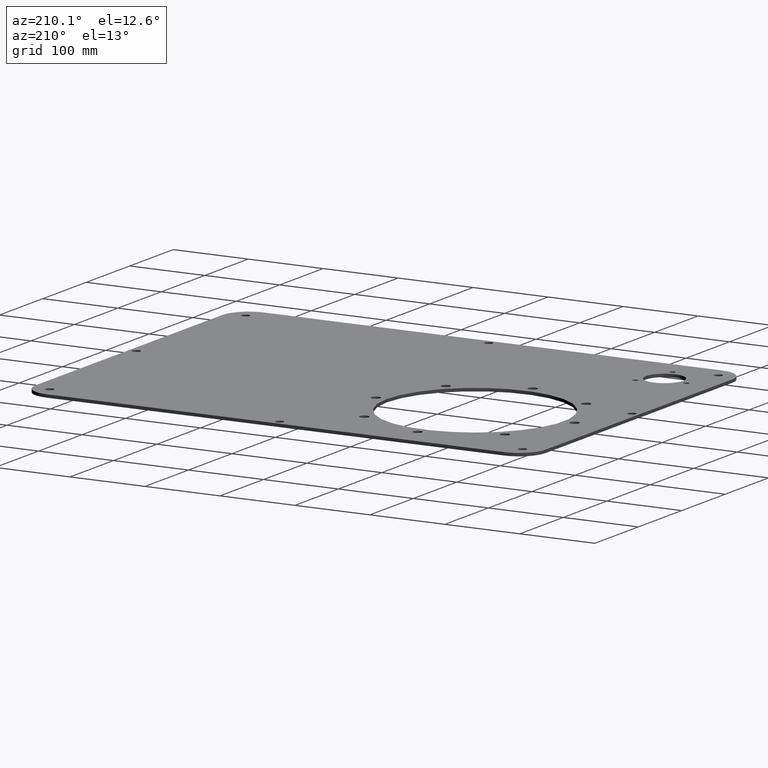
[diagram: clean part render]
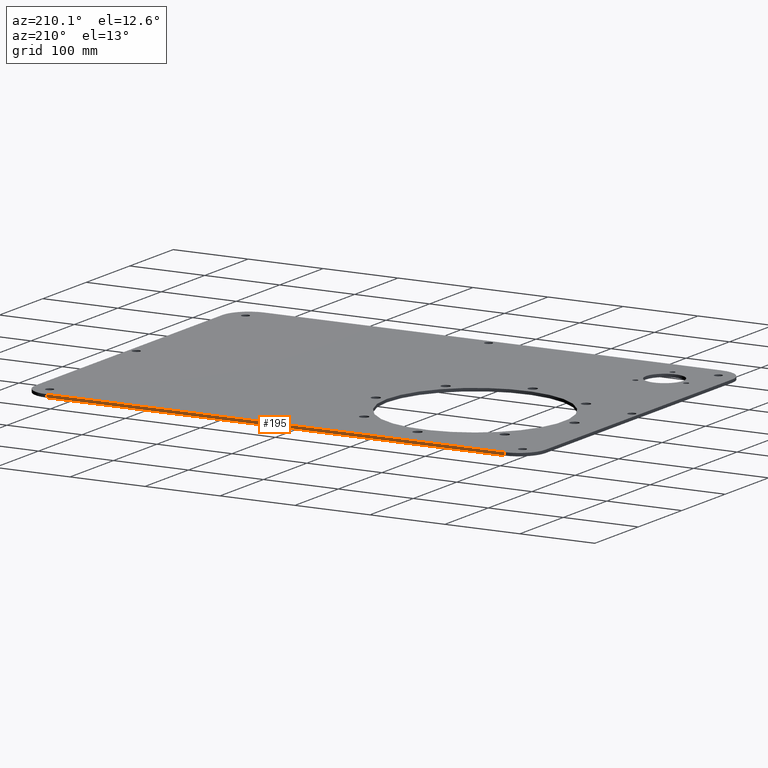
[diagram: same view with one face highlighted and labeled with its STEP entity id]
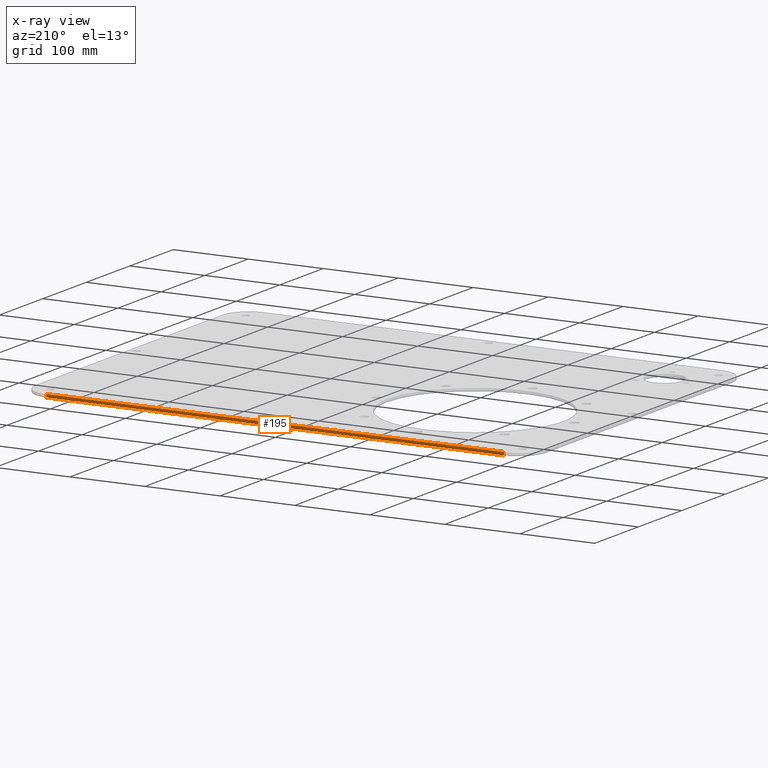
[diagram: x-ray of the same camera — body ghosted, the highlighted face saturated]
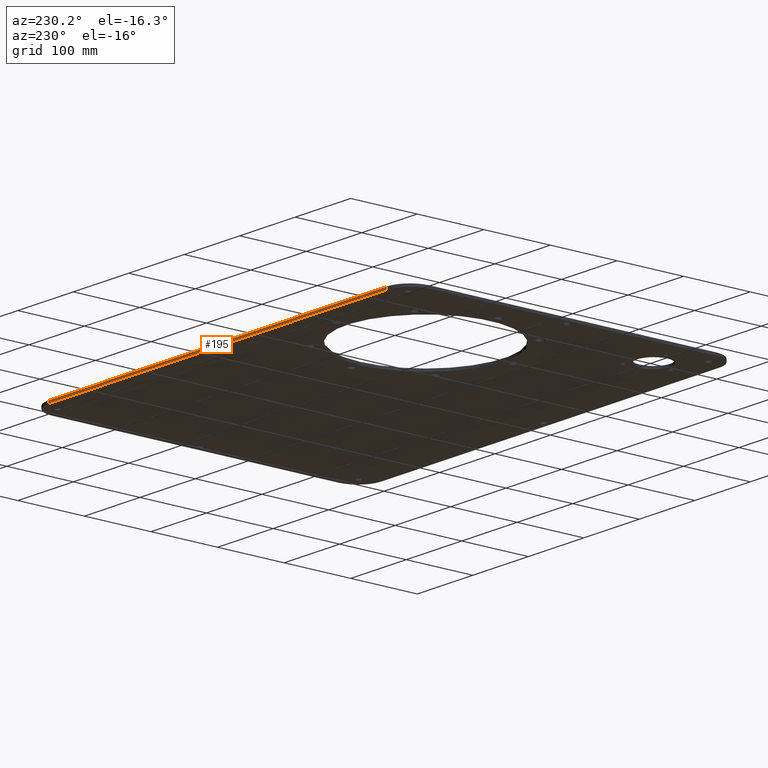
[diagram: same view with one face highlighted and labeled with its STEP entity id]
A machine part, auxiliary view. The second image highlights one B-rep face of the part: STEP entity #195.
The next image is the same camera in x-ray: the body ghosted, the highlighted face saturated — about 0% of this face is hidden behind the body in this view.
A second angle (auxiliary view) of the same face is appended — the face is thin or edge-on in the first view.
In plain terms, the highlighted planar face has unit normal (0, -1, 0).
Its self-contained STEP definition (entity closure, byte-faithful):
#195=ADVANCED_FACE('',(#232),#225,.F.);
#225=PLANE('',#627);
#232=FACE_OUTER_BOUND('',#242,.T.);
#242=EDGE_LOOP('',(#342,#343,#344,#345));
#342=ORIENTED_EDGE('',*,*,#531,.T.);
#343=ORIENTED_EDGE('',*,*,#532,.F.);
#344=ORIENTED_EDGE('',*,*,#533,.F.);
#345=ORIENTED_EDGE('',*,*,#529,.T.);
#470=VERTEX_POINT('',#895);
#471=VERTEX_POINT('',#897);
#472=VERTEX_POINT('',#901);
#473=VERTEX_POINT('',#903);
#529=EDGE_CURVE('',#471,#470,#594,.T.);
#531=EDGE_CURVE('',#470,#472,#595,.T.);
#532=EDGE_CURVE('',#473,#472,#596,.T.);
#533=EDGE_CURVE('',#471,#473,#597,.T.);
#594=LINE('',#896,#610);
#595=LINE('',#900,#611);
#596=LINE('',#902,#612);
#597=LINE('',#904,#613);
#610=VECTOR('',#714,1.);
#611=VECTOR('',#719,1.);
#612=VECTOR('',#720,1.);
#613=VECTOR('',#721,1.);
#627=AXIS2_PLACEMENT_3D('',#905,#722,#723);
#714=DIRECTION('',(0.,0.,-1.));
#719=DIRECTION('',(-1.,0.,0.));
#720=DIRECTION('',(0.,0.,-1.));
#721=DIRECTION('',(-1.,0.,0.));
#722=DIRECTION('',(0.,-1.,0.));
#723=DIRECTION('',(0.,0.,-1.));
#895=CARTESIAN_POINT('',(305.,-2200.,0.));
#896=CARTESIAN_POINT('',(305.,-2200.,4.));
#897=CARTESIAN_POINT('',(305.,-2200.,4.));
#900=CARTESIAN_POINT('',(305.,-2200.,0.));
#901=CARTESIAN_POINT('',(-305.,-2200.,0.));
#902=CARTESIAN_POINT('',(-305.,-2200.,4.));
#903=CARTESIAN_POINT('',(-305.,-2200.,4.));
#904=CARTESIAN_POINT('',(305.,-2200.,4.));
#905=CARTESIAN_POINT('',(305.,-2200.,4.));